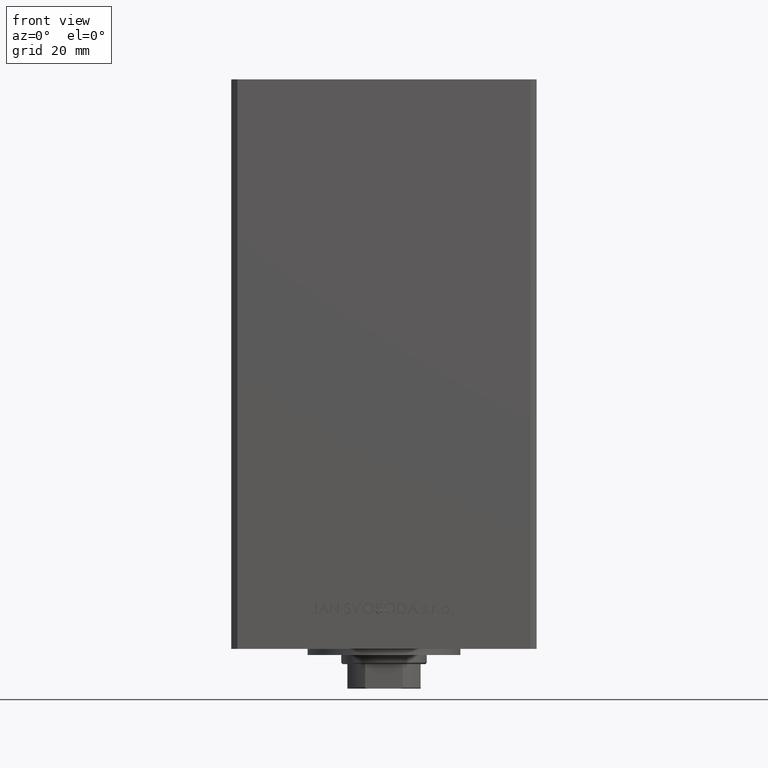
[diagram: clean part render]
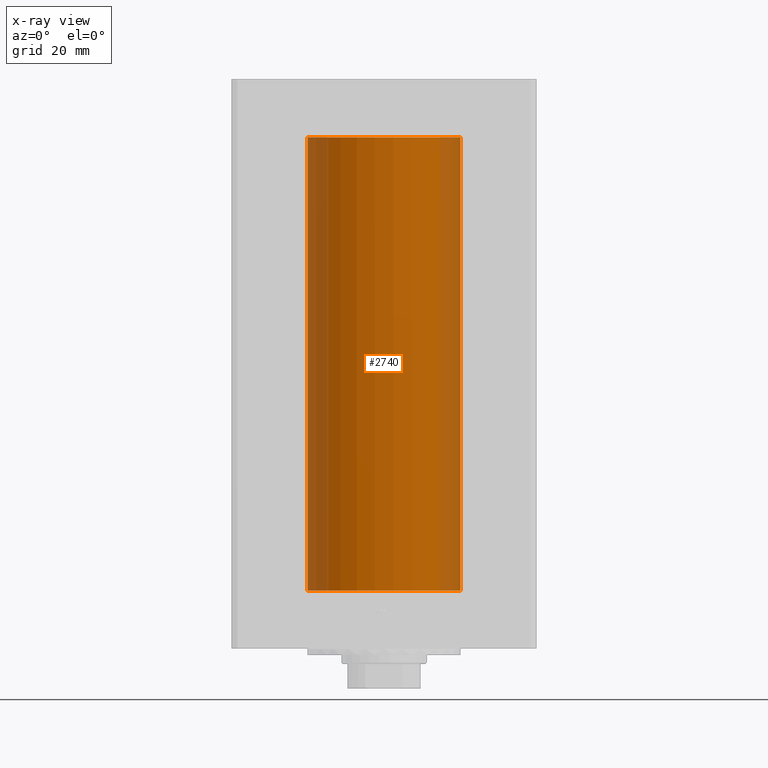
[diagram: x-ray — body ghosted, one internal face saturated and labeled with its STEP entity id]
A machine part, front view, then the same camera in x-ray: the body is ghosted and one INTERNAL B-rep face — a face not visible from any outside direction — is saturated and labeled: STEP entity #2740.
In plain terms, the highlighted cylindrical surface (partial cylindrical patch) has radius 25 mm, axis along (-0, -0, -1).
Its self-contained STEP definition (entity closure, byte-faithful):
#2027 = VECTOR ( 'NONE', #11690, 1000.000000000000000 ) ;
#2264 = CIRCLE ( 'NONE', #45909, 25.00000000000000000 ) ;
#2740 = ADVANCED_FACE ( 'NONE', ( #18733 ), #41623, .F. ) ;
#2868 = CIRCLE ( 'NONE', #19562, 25.00000000000000000 ) ;
#3215 = CARTESIAN_POINT ( 'NONE',  ( 25.00000000000000000, 3.061616997868383043E-15, 148.5000000000000000 ) ) ;
#4405 = ORIENTED_EDGE ( 'NONE', *, *, #23253, .F. ) ;
#5504 = ORIENTED_EDGE ( 'NONE', *, *, #49043, .T. ) ;
#6350 = ORIENTED_EDGE ( 'NONE', *, *, #12316, .F. ) ;
#6939 = LINE ( 'NONE', #3215, #23186 ) ;
#11690 = DIRECTION ( 'NONE',  ( -0.000000000000000000, -0.000000000000000000, -1.000000000000000000 ) ) ;
#12316 = EDGE_CURVE ( 'NONE', #43527, #13661, #38287, .T. ) ;
#13661 = VERTEX_POINT ( 'NONE', #20171 ) ;
#14535 = DIRECTION ( 'NONE',  ( -1.000000000000000000, 0.000000000000000000, 0.000000000000000000 ) ) ;
#14671 = CARTESIAN_POINT ( 'NONE',  ( 25.00000000000000000, 3.061616997868383043E-15, 0.000000000000000000 ) ) ;
#15254 = DIRECTION ( 'NONE',  ( -0.000000000000000000, -0.000000000000000000, -1.000000000000000000 ) ) ;
#17374 = DIRECTION ( 'NONE',  ( -0.000000000000000000, -0.000000000000000000, -1.000000000000000000 ) ) ;
#18733 = FACE_OUTER_BOUND ( 'NONE', #25974, .T. ) ;
#18896 = CARTESIAN_POINT ( 'NONE',  ( 0.000000000000000000, 0.000000000000000000, 0.000000000000000000 ) ) ;
#19562 = AXIS2_PLACEMENT_3D ( 'NONE', #31580, #48395, #43025 ) ;
#20171 = CARTESIAN_POINT ( 'NONE',  ( -25.00000000000000000, 0.000000000000000000, 0.000000000000000000 ) ) ;
#20898 = ORIENTED_EDGE ( 'NONE', *, *, #35473, .T. ) ;
#22144 = DIRECTION ( 'NONE',  ( 1.000000000000000000, 0.000000000000000000, 0.000000000000000000 ) ) ;
#23186 = VECTOR ( 'NONE', #17374, 1000.000000000000000 ) ;
#23253 = EDGE_CURVE ( 'NONE', #13661, #32653, #2264, .T. ) ;
#25974 = EDGE_LOOP ( 'NONE', ( #5504, #20898, #4405, #6350 ) ) ;
#28503 = CARTESIAN_POINT ( 'NONE',  ( -25.00000000000000000, 0.000000000000000000, 148.5000000000000000 ) ) ;
#29696 = CARTESIAN_POINT ( 'NONE',  ( 0.000000000000000000, 0.000000000000000000, 148.5000000000000000 ) ) ;
#31580 = CARTESIAN_POINT ( 'NONE',  ( 0.000000000000000000, 0.000000000000000000, 148.5000000000000000 ) ) ;
#32653 = VERTEX_POINT ( 'NONE', #14671 ) ;
#34569 = CARTESIAN_POINT ( 'NONE',  ( -25.00000000000000000, 0.000000000000000000, 148.5000000000000000 ) ) ;
#35473 = EDGE_CURVE ( 'NONE', #45964, #32653, #6939, .T. ) ;
#36810 = DIRECTION ( 'NONE',  ( -0.000000000000000000, 0.000000000000000000, 1.000000000000000000 ) ) ;
#37355 = CARTESIAN_POINT ( 'NONE',  ( 25.00000000000000000, 3.061616997868383043E-15, 148.5000000000000000 ) ) ;
#38287 = LINE ( 'NONE', #34569, #2027 ) ;
#38880 = AXIS2_PLACEMENT_3D ( 'NONE', #29696, #15254, #14535 ) ;
#41623 = CYLINDRICAL_SURFACE ( 'NONE', #38880, 25.00000000000000000 ) ;
#43025 = DIRECTION ( 'NONE',  ( 1.000000000000000000, 0.000000000000000000, 0.000000000000000000 ) ) ;
#43527 = VERTEX_POINT ( 'NONE', #28503 ) ;
#45909 = AXIS2_PLACEMENT_3D ( 'NONE', #18896, #36810, #22144 ) ;
#45964 = VERTEX_POINT ( 'NONE', #37355 ) ;
#48395 = DIRECTION ( 'NONE',  ( -0.000000000000000000, 0.000000000000000000, 1.000000000000000000 ) ) ;
#49043 = EDGE_CURVE ( 'NONE', #43527, #45964, #2868, .T. ) ;